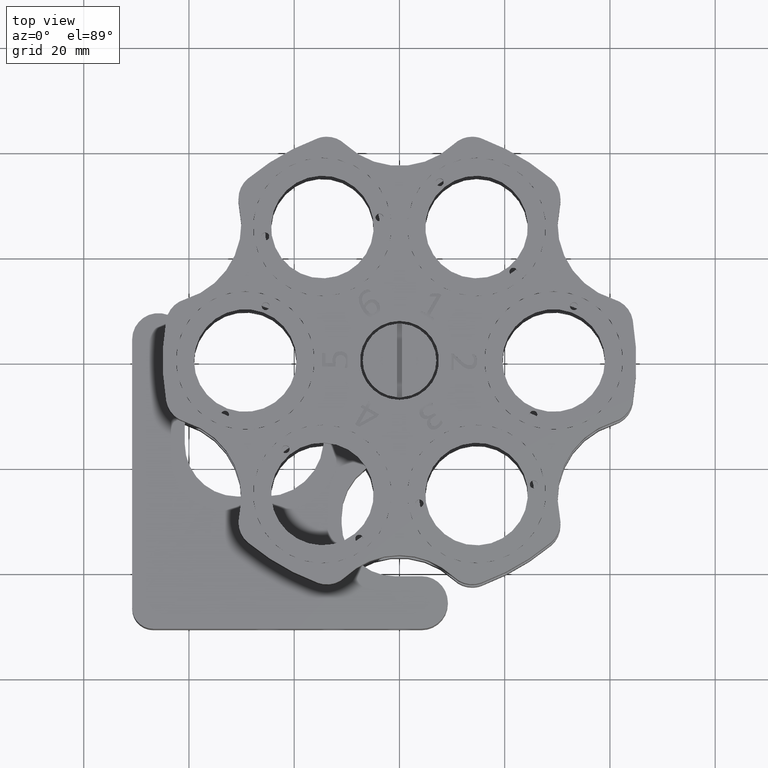
[diagram: clean part render]
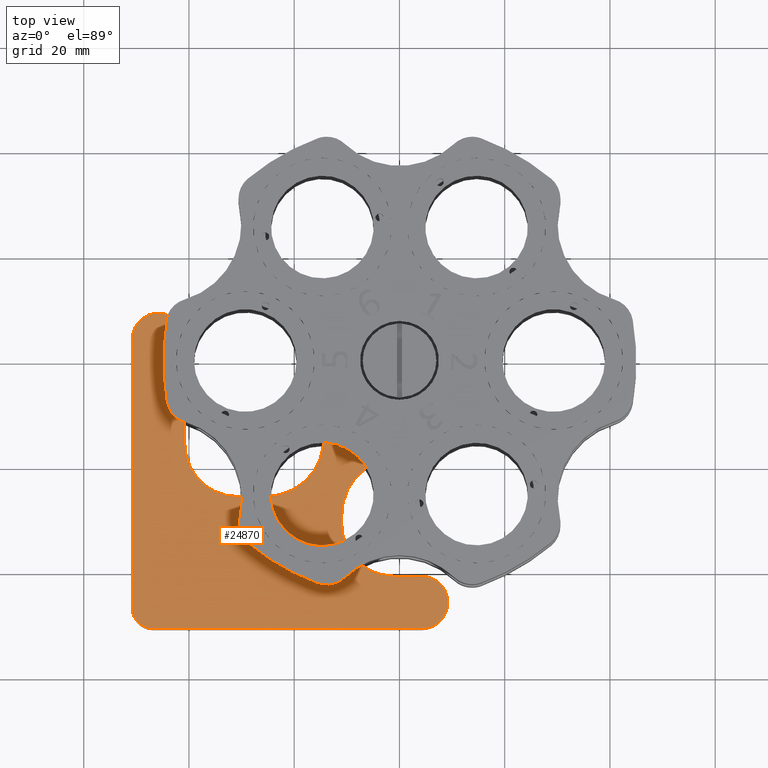
[diagram: same view with one face highlighted and labeled with its STEP entity id]
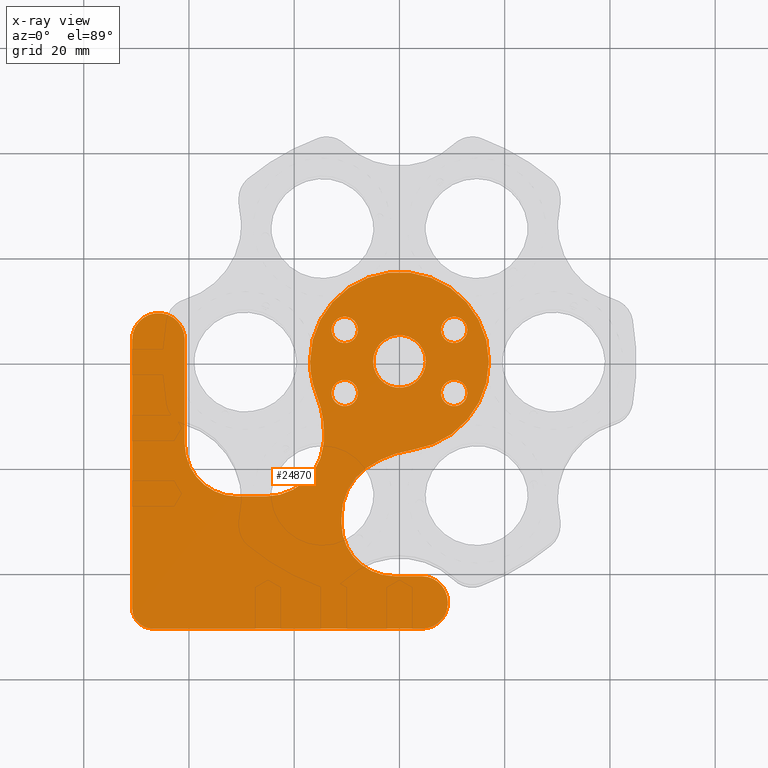
[diagram: x-ray of the same camera — body ghosted, the highlighted face saturated]
A machine part, top view. The second image highlights one B-rep face of the part: STEP entity #24870.
The next image is the same camera in x-ray: the body ghosted, the highlighted face saturated — about 0% of this face is hidden behind the body in this view.
In plain terms, the highlighted planar face has unit normal (-0, 0, 1).
Its self-contained STEP definition (entity closure, byte-faithful):
#11 = CARTESIAN_POINT ( 'NONE',  ( -10.39230484541325700, 6.000000000000015100, 1.249098480898822200E-015 ) ) ;
#138 = CARTESIAN_POINT ( 'NONE',  ( 1.431146867680865900E-014, 2.135878279796443700E-014, 0.0000000000000000000 ) ) ;
#195 = EDGE_CURVE ( 'NONE', #6411, #15769, #4525, .T. ) ;
#263 = CARTESIAN_POINT ( 'NONE',  ( -16.91161726340155300, -40.80000000000001100, 0.0000000000000000000 ) ) ;
#331 = CARTESIAN_POINT ( 'NONE',  ( -7.892304845413268500, 6.000000000000015100, 1.249098480898822200E-015 ) ) ;
#444 = VERTEX_POINT ( 'NONE', #18035 ) ;
#561 = EDGE_CURVE ( 'NONE', #11094, #25651, #19819, .T. ) ;
#658 = CARTESIAN_POINT ( 'NONE',  ( -5.000000000000000900, 0.0000000000000000000, 0.0000000000000000000 ) ) ;
#777 = CIRCLE ( 'NONE', #21665, 2.499999999999988500 ) ;
#830 = AXIS2_PLACEMENT_3D ( 'NONE', #15122, #2830, #8982 ) ;
#883 = ORIENTED_EDGE ( 'NONE', *, *, #5720, .F. ) ;
#1076 = CARTESIAN_POINT ( 'NONE',  ( -11.00000000000002300, -30.79999999999998600, 0.0000000000000000000 ) ) ;
#1204 = DIRECTION ( 'NONE',  ( 1.000000000000000000, 0.0000000000000000000, 0.0000000000000000000 ) ) ;
#1403 = AXIS2_PLACEMENT_3D ( 'NONE', #7547, #19475, #21789 ) ;
#1474 = DIRECTION ( 'NONE',  ( -0.0000000000000000000, 0.0000000000000000000, 1.000000000000000000 ) ) ;
#1508 = VERTEX_POINT ( 'NONE', #16972 ) ;
#2132 = DIRECTION ( 'NONE',  ( 1.000000000000000000, 0.0000000000000000000, 0.0000000000000000000 ) ) ;
#2278 = AXIS2_PLACEMENT_3D ( 'NONE', #22350, #10699, #2388 ) ;
#2294 = CARTESIAN_POINT ( 'NONE',  ( 0.0000000000000000000, 0.0000000000000000000, 0.0000000000000000000 ) ) ;
#2295 = AXIS2_PLACEMENT_3D ( 'NONE', #6025, #7990, #24010 ) ;
#2327 = CARTESIAN_POINT ( 'NONE',  ( -17.00000000000002100, 2.344068235651494100E-014, 0.0000000000000000000 ) ) ;
#2365 = DIRECTION ( 'NONE',  ( -1.000000000000000000, -1.334402673828312100E-015, 0.0000000000000000000 ) ) ;
#2388 = DIRECTION ( 'NONE',  ( 1.000000000000000000, 0.0000000000000000000, 0.0000000000000000000 ) ) ;
#2392 = LINE ( 'NONE', #263, #6252 ) ;
#2829 = CARTESIAN_POINT ( 'NONE',  ( -25.37999999999998500, -25.64999999999994200, 0.0000000000000000000 ) ) ;
#2830 = DIRECTION ( 'NONE',  ( -0.0000000000000000000, 0.0000000000000000000, 1.000000000000000000 ) ) ;
#2976 = CIRCLE ( 'NONE', #11356, 4.999999999999997300 ) ;
#3053 = ORIENTED_EDGE ( 'NONE', *, *, #17142, .F. ) ;
#3057 = VERTEX_POINT ( 'NONE', #658 ) ;
#3161 = CARTESIAN_POINT ( 'NONE',  ( 4.199999999999978000, -50.79999999999997600, 0.0000000000000000000 ) ) ;
#3332 = CARTESIAN_POINT ( 'NONE',  ( -50.79999999999994700, -91.60983450373436200, 0.0000000000000000000 ) ) ;
#3364 = AXIS2_PLACEMENT_3D ( 'NONE', #138, #22403, #10203 ) ;
#3375 = VECTOR ( 'NONE', #12703, 1000.000000000000000 ) ;
#3399 = EDGE_LOOP ( 'NONE', ( #13827, #21138 ) ) ;
#3632 = CARTESIAN_POINT ( 'NONE',  ( 1.431146867680865900E-014, 2.135878279796443700E-014, 0.0000000000000000000 ) ) ;
#3633 = EDGE_CURVE ( 'NONE', #17383, #17819, #4734, .T. ) ;
#3714 = DIRECTION ( 'NONE',  ( -0.0000000000000000000, 0.0000000000000000000, 1.000000000000000000 ) ) ;
#3739 = VERTEX_POINT ( 'NONE', #17080 ) ;
#3855 = EDGE_CURVE ( 'NONE', #18367, #16882, #12668, .T. ) ;
#4062 = CARTESIAN_POINT ( 'NONE',  ( -10.39230484541325700, 6.000000000000015100, 1.249098480898822200E-015 ) ) ;
#4146 = ORIENTED_EDGE ( 'NONE', *, *, #14996, .T. ) ;
#4149 = CARTESIAN_POINT ( 'NONE',  ( 5.219492312476295300, -36.62999999999998800, 0.0000000000000000000 ) ) ;
#4241 = EDGE_LOOP ( 'NONE', ( #16962, #24940 ) ) ;
#4494 = EDGE_CURVE ( 'NONE', #15769, #8031, #9794, .T. ) ;
#4525 = CIRCLE ( 'NONE', #1403, 19.99999999999996100 ) ;
#4686 = AXIS2_PLACEMENT_3D ( 'NONE', #26375, #14157, #13987 ) ;
#4734 = CIRCLE ( 'NONE', #9614, 2.499999999999988500 ) ;
#5143 = CARTESIAN_POINT ( 'NONE',  ( -11.00000000000002300, -29.54287285833695600, 0.0000000000000000000 ) ) ;
#5170 = EDGE_CURVE ( 'NONE', #12994, #17097, #10396, .T. ) ;
#5445 = EDGE_CURVE ( 'NONE', #9711, #9264, #9434, .T. ) ;
#5676 = DIRECTION ( 'NONE',  ( -0.0000000000000000000, 0.0000000000000000000, 1.000000000000000000 ) ) ;
#5704 = ORIENTED_EDGE ( 'NONE', *, *, #9131, .T. ) ;
#5720 = EDGE_CURVE ( 'NONE', #8669, #6411, #18327, .T. ) ;
#5829 = CARTESIAN_POINT ( 'NONE',  ( -1.000000000000021800, -40.79999999999999000, 0.0000000000000000000 ) ) ;
#5955 = LINE ( 'NONE', #6670, #3375 ) ;
#5999 = DIRECTION ( 'NONE',  ( -0.0000000000000000000, 0.0000000000000000000, 1.000000000000000000 ) ) ;
#6025 = CARTESIAN_POINT ( 'NONE',  ( -45.80000000000005400, 4.200000000000017100, 0.0000000000000000000 ) ) ;
#6085 = LINE ( 'NONE', #3332, #10865 ) ;
#6176 = EDGE_CURVE ( 'NONE', #25104, #12009, #15461, .T. ) ;
#6252 = VECTOR ( 'NONE', #2365, 1000.000000000000000 ) ;
#6276 = CARTESIAN_POINT ( 'NONE',  ( -10.39230484541325700, -6.000000000000015100, 1.249098480898822200E-015 ) ) ;
#6377 = CARTESIAN_POINT ( 'NONE',  ( -1.000000000000024200, -30.79999999999998600, 0.0000000000000000000 ) ) ;
#6411 = VERTEX_POINT ( 'NONE', #6921 ) ;
#6476 = VERTEX_POINT ( 'NONE', #3161 ) ;
#6547 = DIRECTION ( 'NONE',  ( -0.0000000000000000000, 0.0000000000000000000, 1.000000000000000000 ) ) ;
#6670 = CARTESIAN_POINT ( 'NONE',  ( -11.00000000000002300, -91.60983450373431900, 0.0000000000000000000 ) ) ;
#6718 = CARTESIAN_POINT ( 'NONE',  ( -12.89230484541324500, -6.000000000000015100, 1.249098480898822200E-015 ) ) ;
#6786 = CIRCLE ( 'NONE', #3364, 17.00000000000003600 ) ;
#6901 = CARTESIAN_POINT ( 'NONE',  ( -6.385338524956366300, -20.34111111111102200, 0.0000000000000000000 ) ) ;
#6921 = CARTESIAN_POINT ( 'NONE',  ( -14.43143337034554600, -15.71249176750572500, 0.0000000000000000000 ) ) ;
#6951 = DIRECTION ( 'NONE',  ( 0.0000000000000000000, -1.000000000000000000, 0.0000000000000000000 ) ) ;
#7006 = EDGE_CURVE ( 'NONE', #6476, #18367, #2976, .T. ) ;
#7458 = DIRECTION ( 'NONE',  ( 1.000000000000000000, 0.0000000000000000000, 0.0000000000000000000 ) ) ;
#7546 = AXIS2_PLACEMENT_3D ( 'NONE', #23868, #1474, #1204 ) ;
#7547 = CARTESIAN_POINT ( 'NONE',  ( -34.33791815153536900, -13.78068855385882700, 0.0000000000000000000 ) ) ;
#7634 = ORIENTED_EDGE ( 'NONE', *, *, #16360, .T. ) ;
#7677 = CARTESIAN_POINT ( 'NONE',  ( -40.80000000000005400, 4.200000000000009100, 0.0000000000000000000 ) ) ;
#7965 = DIRECTION ( 'NONE',  ( -0.0000000000000000000, -0.0000000000000000000, 1.000000000000000000 ) ) ;
#7990 = DIRECTION ( 'NONE',  ( -0.0000000000000000000, 0.0000000000000000000, 1.000000000000000000 ) ) ;
#8031 = VERTEX_POINT ( 'NONE', #12936 ) ;
#8155 = CARTESIAN_POINT ( 'NONE',  ( 10.39230484541325700, 6.000000000000015100, 1.249098480898822200E-015 ) ) ;
#8250 = CARTESIAN_POINT ( 'NONE',  ( -25.37999999999998500, -14.64999999999992400, 0.0000000000000000000 ) ) ;
#8318 = DIRECTION ( 'NONE',  ( 1.000000000000000000, 0.0000000000000000000, 0.0000000000000000000 ) ) ;
#8324 = CIRCLE ( 'NONE', #11049, 5.000000000000000900 ) ;
#8371 = DIRECTION ( 'NONE',  ( -1.000000000000000000, 0.0000000000000000000, 0.0000000000000000000 ) ) ;
#8383 = ORIENTED_EDGE ( 'NONE', *, *, #14769, .T. ) ;
#8490 = EDGE_LOOP ( 'NONE', ( #20638, #9704 ) ) ;
#8520 = EDGE_CURVE ( 'NONE', #11094, #9264, #5955, .T. ) ;
#8658 = DIRECTION ( 'NONE',  ( -0.0000000000000000000, -0.0000000000000000000, 1.000000000000000000 ) ) ;
#8669 = VERTEX_POINT ( 'NONE', #2829 ) ;
#8745 = CARTESIAN_POINT ( 'NONE',  ( -10.39230484541325700, -6.000000000000015100, 1.249098480898822200E-015 ) ) ;
#8791 = CARTESIAN_POINT ( 'NONE',  ( -16.91161726340149600, -50.79999999999998300, 0.0000000000000000000 ) ) ;
#8824 = AXIS2_PLACEMENT_3D ( 'NONE', #3632, #3714, #11752 ) ;
#8878 = VECTOR ( 'NONE', #23037, 1000.000000000000000 ) ;
#8894 = DIRECTION ( 'NONE',  ( -1.000000000000000000, 0.0000000000000000000, 0.0000000000000000000 ) ) ;
#8927 = AXIS2_PLACEMENT_3D ( 'NONE', #23402, #9059, #13237 ) ;
#8982 = DIRECTION ( 'NONE',  ( 1.000000000000000000, 0.0000000000000000000, 0.0000000000000000000 ) ) ;
#9044 = FACE_BOUND ( 'NONE', #11727, .T. ) ;
#9059 = DIRECTION ( 'NONE',  ( -0.0000000000000000000, 0.0000000000000000000, 1.000000000000000000 ) ) ;
#9076 = CIRCLE ( 'NONE', #23462, 3.999999999999996400 ) ;
#9131 = EDGE_CURVE ( 'NONE', #16882, #25651, #2392, .T. ) ;
#9172 = AXIS2_PLACEMENT_3D ( 'NONE', #21094, #25017, #8894 ) ;
#9229 = ORIENTED_EDGE ( 'NONE', *, *, #16854, .T. ) ;
#9261 = EDGE_CURVE ( 'NONE', #22896, #3739, #9076, .T. ) ;
#9264 = VERTEX_POINT ( 'NONE', #5143 ) ;
#9288 = DIRECTION ( 'NONE',  ( -0.0000000000000000000, 0.0000000000000000000, 1.000000000000000000 ) ) ;
#9434 = CIRCLE ( 'NONE', #8927, 11.00000000000001100 ) ;
#9528 = ORIENTED_EDGE ( 'NONE', *, *, #195, .F. ) ;
#9614 = AXIS2_PLACEMENT_3D ( 'NONE', #8745, #8658, #10714 ) ;
#9704 = ORIENTED_EDGE ( 'NONE', *, *, #21894, .F. ) ;
#9711 = VERTEX_POINT ( 'NONE', #6901 ) ;
#9713 = FACE_OUTER_BOUND ( 'NONE', #19321, .T. ) ;
#9794 = CIRCLE ( 'NONE', #830, 19.99999999999996100 ) ;
#9985 = CIRCLE ( 'NONE', #2295, 4.999999999999997300 ) ;
#10188 = ORIENTED_EDGE ( 'NONE', *, *, #22906, .F. ) ;
#10203 = DIRECTION ( 'NONE',  ( 1.000000000000000000, 0.0000000000000000000, 0.0000000000000000000 ) ) ;
#10353 = CARTESIAN_POINT ( 'NONE',  ( -16.91161726340140300, -25.64999999999994900, 0.0000000000000000000 ) ) ;
#10396 = CIRCLE ( 'NONE', #13376, 2.499999999999988500 ) ;
#10515 = AXIS2_PLACEMENT_3D ( 'NONE', #8155, #22568, #16311 ) ;
#10623 = EDGE_CURVE ( 'NONE', #12009, #25104, #22121, .T. ) ;
#10630 = AXIS2_PLACEMENT_3D ( 'NONE', #4149, #16073, #22239 ) ;
#10681 = CARTESIAN_POINT ( 'NONE',  ( 12.89230484541324500, -6.000000000000015100, 1.249098480898822200E-015 ) ) ;
#10699 = DIRECTION ( 'NONE',  ( -0.0000000000000000000, -0.0000000000000000000, 1.000000000000000000 ) ) ;
#10714 = DIRECTION ( 'NONE',  ( 1.000000000000000000, 0.0000000000000000000, 0.0000000000000000000 ) ) ;
#10759 = ORIENTED_EDGE ( 'NONE', *, *, #8520, .T. ) ;
#10773 = ORIENTED_EDGE ( 'NONE', *, *, #20441, .T. ) ;
#10865 = VECTOR ( 'NONE', #25698, 1000.000000000000000 ) ;
#11049 = AXIS2_PLACEMENT_3D ( 'NONE', #2294, #22517, #8371 ) ;
#11085 = VERTEX_POINT ( 'NONE', #19394 ) ;
#11094 = VERTEX_POINT ( 'NONE', #1076 ) ;
#11231 = EDGE_CURVE ( 'NONE', #24830, #1508, #9985, .T. ) ;
#11317 = EDGE_CURVE ( 'NONE', #23176, #21947, #25283, .T. ) ;
#11341 = DIRECTION ( 'NONE',  ( 1.000000000000000000, 0.0000000000000000000, 0.0000000000000000000 ) ) ;
#11356 = AXIS2_PLACEMENT_3D ( 'NONE', #19263, #9288, #11341 ) ;
#11578 = VERTEX_POINT ( 'NONE', #26042 ) ;
#11709 = ORIENTED_EDGE ( 'NONE', *, *, #11317, .F. ) ;
#11727 = EDGE_LOOP ( 'NONE', ( #21019, #18241 ) ) ;
#11733 = ORIENTED_EDGE ( 'NONE', *, *, #5445, .F. ) ;
#11752 = DIRECTION ( 'NONE',  ( 1.000000000000000000, 0.0000000000000000000, 0.0000000000000000000 ) ) ;
#11756 = CIRCLE ( 'NONE', #13384, 17.00000000000003600 ) ;
#12009 = VERTEX_POINT ( 'NONE', #17461 ) ;
#12231 = DIRECTION ( 'NONE',  ( -0.0000000000000000000, -0.0000000000000000000, 1.000000000000000000 ) ) ;
#12362 = CIRCLE ( 'NONE', #8824, 17.00000000000003600 ) ;
#12505 = VERTEX_POINT ( 'NONE', #21002 ) ;
#12668 = CIRCLE ( 'NONE', #21377, 4.999999999999997300 ) ;
#12703 = DIRECTION ( 'NONE',  ( 0.0000000000000000000, 1.000000000000000000, -0.0000000000000000000 ) ) ;
#12813 = ORIENTED_EDGE ( 'NONE', *, *, #20300, .F. ) ;
#12866 = EDGE_CURVE ( 'NONE', #17766, #8031, #6786, .T. ) ;
#12897 = CIRCLE ( 'NONE', #13297, 9.999999999999998200 ) ;
#12936 = CARTESIAN_POINT ( 'NONE',  ( -15.77688131286762600, -6.331667713935137200, 0.0000000000000000000 ) ) ;
#12994 = VERTEX_POINT ( 'NONE', #331 ) ;
#13068 = CIRCLE ( 'NONE', #10630, 19.99999999999996100 ) ;
#13188 = AXIS2_PLACEMENT_3D ( 'NONE', #4062, #22411, #20374 ) ;
#13237 = DIRECTION ( 'NONE',  ( 1.000000000000000000, 0.0000000000000000000, 0.0000000000000000000 ) ) ;
#13279 = ORIENTED_EDGE ( 'NONE', *, *, #561, .F. ) ;
#13297 = AXIS2_PLACEMENT_3D ( 'NONE', #26212, #5999, #20249 ) ;
#13376 = AXIS2_PLACEMENT_3D ( 'NONE', #11, #7965, #2132 ) ;
#13384 = AXIS2_PLACEMENT_3D ( 'NONE', #20521, #6547, #8318 ) ;
#13676 = ORIENTED_EDGE ( 'NONE', *, *, #3855, .T. ) ;
#13827 = ORIENTED_EDGE ( 'NONE', *, *, #5170, .F. ) ;
#13881 = DIRECTION ( 'NONE',  ( -0.0000000000000000000, 0.0000000000000000000, 1.000000000000000000 ) ) ;
#13883 = EDGE_CURVE ( 'NONE', #12505, #3057, #8324, .T. ) ;
#13987 = DIRECTION ( 'NONE',  ( 1.000000000000000000, 0.0000000000000000000, 0.0000000000000000000 ) ) ;
#14157 = DIRECTION ( 'NONE',  ( -0.0000000000000000000, -0.0000000000000000000, 1.000000000000000000 ) ) ;
#14327 = VECTOR ( 'NONE', #24585, 1000.000000000000000 ) ;
#14419 = EDGE_CURVE ( 'NONE', #444, #9711, #13068, .T. ) ;
#14443 = ORIENTED_EDGE ( 'NONE', *, *, #14419, .F. ) ;
#14462 = CARTESIAN_POINT ( 'NONE',  ( 17.00000000000005000, 2.135878279796443700E-014, 0.0000000000000000000 ) ) ;
#14473 = EDGE_CURVE ( 'NONE', #17097, #12994, #22332, .T. ) ;
#14634 = DIRECTION ( 'NONE',  ( 1.000000000000000000, 0.0000000000000000000, 0.0000000000000000000 ) ) ;
#14669 = CARTESIAN_POINT ( 'NONE',  ( 9.199999999999979700, -45.79999999999999000, 0.0000000000000000000 ) ) ;
#14769 = EDGE_CURVE ( 'NONE', #1508, #22896, #6085, .T. ) ;
#14996 = EDGE_CURVE ( 'NONE', #8669, #11578, #16243, .T. ) ;
#15026 = CARTESIAN_POINT ( 'NONE',  ( -40.80000000000005400, -91.60983450373431900, 0.0000000000000000000 ) ) ;
#15122 = CARTESIAN_POINT ( 'NONE',  ( -34.33791815153536900, -13.78068855385882700, 0.0000000000000000000 ) ) ;
#15317 = VERTEX_POINT ( 'NONE', #14462 ) ;
#15461 = CIRCLE ( 'NONE', #2278, 2.499999999999988500 ) ;
#15572 = VECTOR ( 'NONE', #6951, 1000.000000000000000 ) ;
#15769 = VERTEX_POINT ( 'NONE', #24573 ) ;
#16073 = DIRECTION ( 'NONE',  ( -0.0000000000000000000, 0.0000000000000000000, 1.000000000000000000 ) ) ;
#16230 = DIRECTION ( 'NONE',  ( -0.0000000000000000000, 0.0000000000000000000, 1.000000000000000000 ) ) ;
#16243 = LINE ( 'NONE', #10353, #14327 ) ;
#16311 = DIRECTION ( 'NONE',  ( 1.000000000000000000, 0.0000000000000000000, 0.0000000000000000000 ) ) ;
#16360 = EDGE_CURVE ( 'NONE', #3739, #6476, #26408, .T. ) ;
#16854 = EDGE_CURVE ( 'NONE', #15317, #17766, #11756, .T. ) ;
#16882 = VERTEX_POINT ( 'NONE', #24428 ) ;
#16962 = ORIENTED_EDGE ( 'NONE', *, *, #6176, .F. ) ;
#16972 = CARTESIAN_POINT ( 'NONE',  ( -50.80000000000005400, 4.200000000000009100, 0.0000000000000000000 ) ) ;
#17080 = CARTESIAN_POINT ( 'NONE',  ( -46.80000000000000400, -50.79999999999999000, 0.0000000000000000000 ) ) ;
#17097 = VERTEX_POINT ( 'NONE', #17654 ) ;
#17142 = EDGE_CURVE ( 'NONE', #21947, #23176, #20335, .T. ) ;
#17233 = CARTESIAN_POINT ( 'NONE',  ( 10.39230484541325700, -6.000000000000015100, 1.249098480898822200E-015 ) ) ;
#17383 = VERTEX_POINT ( 'NONE', #22624 ) ;
#17461 = CARTESIAN_POINT ( 'NONE',  ( 7.892304845413268500, -6.000000000000015100, 1.249098480898822200E-015 ) ) ;
#17593 = ORIENTED_EDGE ( 'NONE', *, *, #11231, .T. ) ;
#17654 = CARTESIAN_POINT ( 'NONE',  ( -12.89230484541324500, 6.000000000000015100, 1.249098480898822200E-015 ) ) ;
#17766 = VERTEX_POINT ( 'NONE', #2327 ) ;
#17819 = VERTEX_POINT ( 'NONE', #6718 ) ;
#18035 = CARTESIAN_POINT ( 'NONE',  ( 2.398145116543167100, -16.83000000000002000, 0.0000000000000000000 ) ) ;
#18241 = ORIENTED_EDGE ( 'NONE', *, *, #13883, .T. ) ;
#18295 = FACE_BOUND ( 'NONE', #4241, .T. ) ;
#18317 = AXIS2_PLACEMENT_3D ( 'NONE', #8250, #18382, #14634 ) ;
#18327 = CIRCLE ( 'NONE', #18317, 11.00000000000001600 ) ;
#18367 = VERTEX_POINT ( 'NONE', #14669 ) ;
#18382 = DIRECTION ( 'NONE',  ( -0.0000000000000000000, 0.0000000000000000000, 1.000000000000000000 ) ) ;
#18412 = LINE ( 'NONE', #15026, #15572 ) ;
#18456 = DIRECTION ( 'NONE',  ( 1.000000000000000000, 0.0000000000000000000, 0.0000000000000000000 ) ) ;
#19263 = CARTESIAN_POINT ( 'NONE',  ( 4.199999999999981500, -45.79999999999999000, 0.0000000000000000000 ) ) ;
#19321 = EDGE_LOOP ( 'NONE', ( #8383, #25291, #7634, #21983, #13676, #5704, #13279, #10759, #11733, #14443, #10773, #9229, #26389, #19679, #9528, #883, #4146, #10188, #12813, #17593 ) ) ;
#19394 = CARTESIAN_POINT ( 'NONE',  ( -40.80000000000005400, -15.64999999999992800, 0.0000000000000000000 ) ) ;
#19475 = DIRECTION ( 'NONE',  ( -0.0000000000000000000, 0.0000000000000000000, 1.000000000000000000 ) ) ;
#19679 = ORIENTED_EDGE ( 'NONE', *, *, #4494, .F. ) ;
#19819 = CIRCLE ( 'NONE', #26023, 10.00000000000000200 ) ;
#19900 = CARTESIAN_POINT ( 'NONE',  ( -50.79999999999999700, -46.79999999999999700, 0.0000000000000000000 ) ) ;
#20169 = EDGE_CURVE ( 'NONE', #3057, #12505, #22263, .T. ) ;
#20249 = DIRECTION ( 'NONE',  ( 1.000000000000000000, 0.0000000000000000000, 0.0000000000000000000 ) ) ;
#20300 = EDGE_CURVE ( 'NONE', #24830, #11085, #18412, .T. ) ;
#20335 = CIRCLE ( 'NONE', #4686, 2.499999999999988500 ) ;
#20374 = DIRECTION ( 'NONE',  ( 1.000000000000000000, 0.0000000000000000000, 0.0000000000000000000 ) ) ;
#20441 = EDGE_CURVE ( 'NONE', #444, #15317, #12362, .T. ) ;
#20521 = CARTESIAN_POINT ( 'NONE',  ( 1.431146867680865900E-014, 2.135878279796443700E-014, 0.0000000000000000000 ) ) ;
#20638 = ORIENTED_EDGE ( 'NONE', *, *, #3633, .F. ) ;
#21002 = CARTESIAN_POINT ( 'NONE',  ( 5.000000000000000900, 6.123233995736767300E-016, 0.0000000000000000000 ) ) ;
#21019 = ORIENTED_EDGE ( 'NONE', *, *, #20169, .T. ) ;
#21094 = CARTESIAN_POINT ( 'NONE',  ( 0.0000000000000000000, 0.0000000000000000000, 0.0000000000000000000 ) ) ;
#21138 = ORIENTED_EDGE ( 'NONE', *, *, #14473, .F. ) ;
#21167 = DIRECTION ( 'NONE',  ( -0.0000000000000000000, -0.0000000000000000000, 1.000000000000000000 ) ) ;
#21377 = AXIS2_PLACEMENT_3D ( 'NONE', #26348, #13881, #26267 ) ;
#21665 = AXIS2_PLACEMENT_3D ( 'NONE', #6276, #12231, #18456 ) ;
#21789 = DIRECTION ( 'NONE',  ( 1.000000000000000000, 0.0000000000000000000, 0.0000000000000000000 ) ) ;
#21894 = EDGE_CURVE ( 'NONE', #17819, #17383, #777, .T. ) ;
#21947 = VERTEX_POINT ( 'NONE', #24690 ) ;
#21983 = ORIENTED_EDGE ( 'NONE', *, *, #7006, .T. ) ;
#22121 = CIRCLE ( 'NONE', #22798, 2.499999999999988500 ) ;
#22239 = DIRECTION ( 'NONE',  ( 1.000000000000000000, 0.0000000000000000000, 0.0000000000000000000 ) ) ;
#22263 = CIRCLE ( 'NONE', #9172, 5.000000000000000900 ) ;
#22309 = DIRECTION ( 'NONE',  ( 1.000000000000000000, 0.0000000000000000000, 0.0000000000000000000 ) ) ;
#22332 = CIRCLE ( 'NONE', #13188, 2.499999999999988500 ) ;
#22350 = CARTESIAN_POINT ( 'NONE',  ( 10.39230484541325700, -6.000000000000015100, 1.249098480898822200E-015 ) ) ;
#22403 = DIRECTION ( 'NONE',  ( -0.0000000000000000000, 0.0000000000000000000, 1.000000000000000000 ) ) ;
#22411 = DIRECTION ( 'NONE',  ( -0.0000000000000000000, -0.0000000000000000000, 1.000000000000000000 ) ) ;
#22439 = FACE_BOUND ( 'NONE', #3399, .T. ) ;
#22517 = DIRECTION ( 'NONE',  ( 0.0000000000000000000, 0.0000000000000000000, -1.000000000000000000 ) ) ;
#22568 = DIRECTION ( 'NONE',  ( -0.0000000000000000000, -0.0000000000000000000, 1.000000000000000000 ) ) ;
#22624 = CARTESIAN_POINT ( 'NONE',  ( -7.892304845413268500, -6.000000000000015100, 1.249098480898822200E-015 ) ) ;
#22798 = AXIS2_PLACEMENT_3D ( 'NONE', #17233, #21167, #25258 ) ;
#22815 = CARTESIAN_POINT ( 'NONE',  ( 12.89230484541324500, 6.000000000000015100, 1.249098480898822200E-015 ) ) ;
#22896 = VERTEX_POINT ( 'NONE', #19900 ) ;
#22906 = EDGE_CURVE ( 'NONE', #11085, #11578, #12897, .T. ) ;
#23037 = DIRECTION ( 'NONE',  ( 1.000000000000000000, 2.721134864277345600E-016, 0.0000000000000000000 ) ) ;
#23176 = VERTEX_POINT ( 'NONE', #22815 ) ;
#23402 = CARTESIAN_POINT ( 'NONE',  ( -0.002681564368387998100, -29.29999999999997900, 0.0000000000000000000 ) ) ;
#23462 = AXIS2_PLACEMENT_3D ( 'NONE', #25710, #5676, #7458 ) ;
#23608 = PLANE ( 'NONE',  #7546 ) ;
#23729 = FACE_BOUND ( 'NONE', #25093, .T. ) ;
#23868 = CARTESIAN_POINT ( 'NONE',  ( -16.91161726340148500, -91.60983450373431900, 0.0000000000000000000 ) ) ;
#24010 = DIRECTION ( 'NONE',  ( 1.000000000000000000, 0.0000000000000000000, 0.0000000000000000000 ) ) ;
#24428 = CARTESIAN_POINT ( 'NONE',  ( 4.199999999999978000, -40.79999999999998300, 0.0000000000000000000 ) ) ;
#24573 = CARTESIAN_POINT ( 'NONE',  ( -14.33791815153540700, -13.78068855385882700, 0.0000000000000000000 ) ) ;
#24585 = DIRECTION ( 'NONE',  ( -1.000000000000000000, 1.280238727658143600E-015, 0.0000000000000000000 ) ) ;
#24690 = CARTESIAN_POINT ( 'NONE',  ( 7.892304845413268500, 6.000000000000015100, 1.249098480898822200E-015 ) ) ;
#24830 = VERTEX_POINT ( 'NONE', #7677 ) ;
#24870 = ADVANCED_FACE ( 'NONE', ( #23729, #18295, #25959, #22439, #9044, #9713 ), #23608, .T. ) ;
#24940 = ORIENTED_EDGE ( 'NONE', *, *, #10623, .F. ) ;
#25017 = DIRECTION ( 'NONE',  ( 0.0000000000000000000, 0.0000000000000000000, -1.000000000000000000 ) ) ;
#25093 = EDGE_LOOP ( 'NONE', ( #11709, #3053 ) ) ;
#25104 = VERTEX_POINT ( 'NONE', #10681 ) ;
#25258 = DIRECTION ( 'NONE',  ( 1.000000000000000000, 0.0000000000000000000, 0.0000000000000000000 ) ) ;
#25283 = CIRCLE ( 'NONE', #10515, 2.499999999999988500 ) ;
#25291 = ORIENTED_EDGE ( 'NONE', *, *, #9261, .T. ) ;
#25651 = VERTEX_POINT ( 'NONE', #5829 ) ;
#25698 = DIRECTION ( 'NONE',  ( 1.088453945710937700E-015, -1.000000000000000000, 0.0000000000000000000 ) ) ;
#25710 = CARTESIAN_POINT ( 'NONE',  ( -46.80000000000000400, -46.79999999999999700, 0.0000000000000000000 ) ) ;
#25959 = FACE_BOUND ( 'NONE', #8490, .T. ) ;
#26023 = AXIS2_PLACEMENT_3D ( 'NONE', #6377, #16230, #22309 ) ;
#26042 = CARTESIAN_POINT ( 'NONE',  ( -30.80000000000005800, -25.64999999999993500, 0.0000000000000000000 ) ) ;
#26212 = CARTESIAN_POINT ( 'NONE',  ( -30.80000000000005400, -15.64999999999992800, 0.0000000000000000000 ) ) ;
#26267 = DIRECTION ( 'NONE',  ( 1.000000000000000000, 0.0000000000000000000, 0.0000000000000000000 ) ) ;
#26348 = CARTESIAN_POINT ( 'NONE',  ( 4.199999999999981500, -45.79999999999999000, 0.0000000000000000000 ) ) ;
#26375 = CARTESIAN_POINT ( 'NONE',  ( 10.39230484541325700, 6.000000000000015100, 1.249098480898822200E-015 ) ) ;
#26389 = ORIENTED_EDGE ( 'NONE', *, *, #12866, .T. ) ;
#26408 = LINE ( 'NONE', #8791, #8878 ) ;